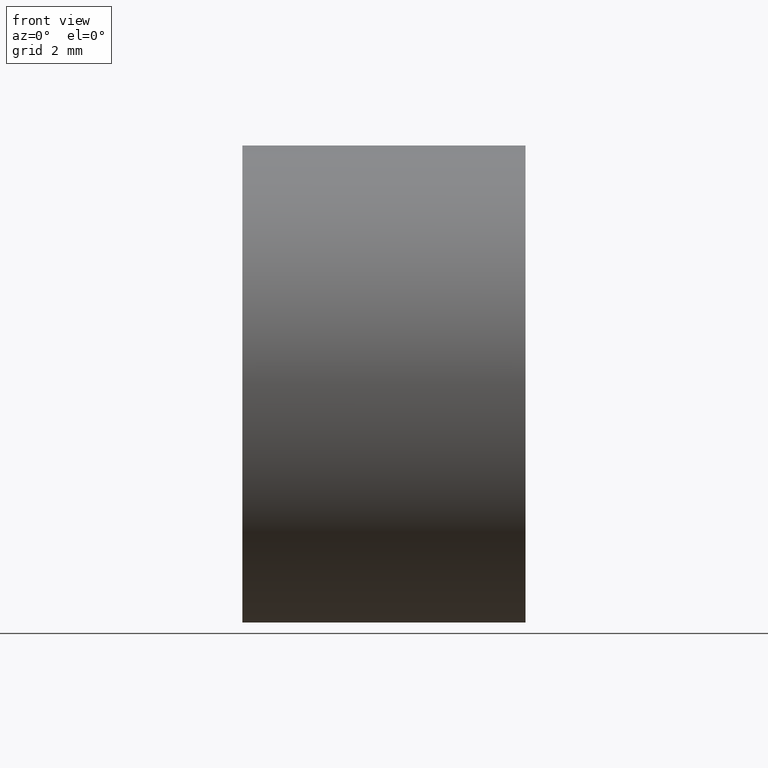
[diagram: clean part render]
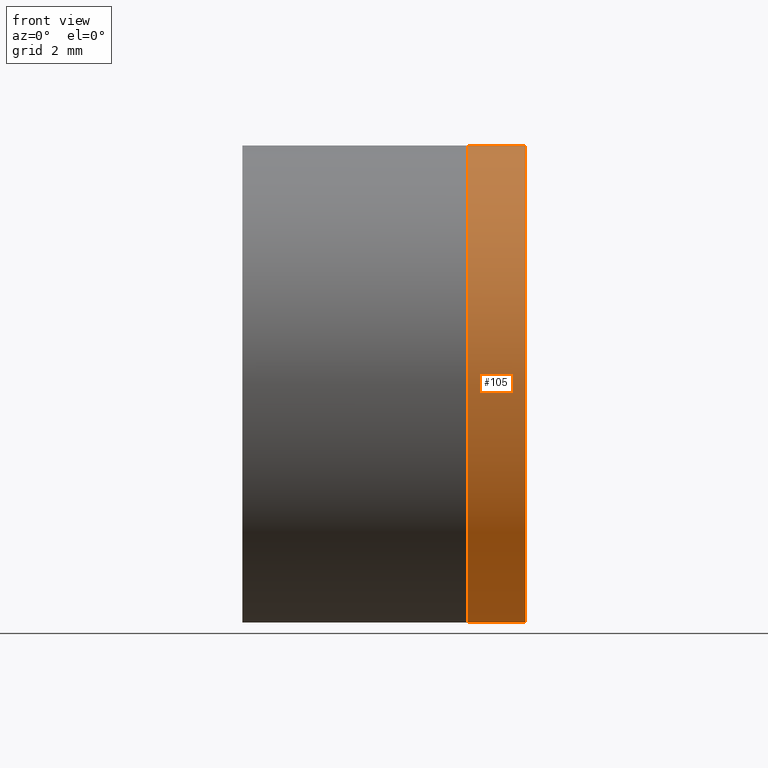
[diagram: same view with one face highlighted and labeled with its STEP entity id]
A machine part, front view. The second image highlights one B-rep face of the part: STEP entity #105.
In plain terms, the highlighted cylindrical surface (partial cylindrical patch) has radius 6.25 mm, axis along (-1, -0, -0).
Its self-contained STEP definition (entity closure, byte-faithful):
#8 = EDGE_CURVE ( 'NONE', #122, #172, #330, .T. ) ;
#16 = DIRECTION ( 'NONE',  ( -4.440892098500621400E-015, 0.0000000000000000000, 1.000000000000000000 ) ) ;
#22 = LINE ( 'NONE', #185, #302 ) ;
#31 = CIRCLE ( 'NONE', #250, 6.250000000000006200 ) ;
#36 = ORIENTED_EDGE ( 'NONE', *, *, #8, .T. ) ;
#45 = CARTESIAN_POINT ( 'NONE',  ( 230.6595650911644100, 7.654042494670974400E-016, -6.250000000000061300 ) ) ;
#51 = CARTESIAN_POINT ( 'NONE',  ( 232.1856338611331400, 0.0000000000000000000, 6.250000000000000000 ) ) ;
#60 = CARTESIAN_POINT ( 'NONE',  ( 232.1856338611331700, 0.0000000000000000000, -1.143077084485743200E-014 ) ) ;
#66 = EDGE_LOOP ( 'NONE', ( #215, #36, #116, #342 ) ) ;
#77 = EDGE_CURVE ( 'NONE', #275, #233, #31, .T. ) ;
#79 = AXIS2_PLACEMENT_3D ( 'NONE', #235, #126, #132 ) ;
#100 = CARTESIAN_POINT ( 'NONE',  ( 230.6595650911643500, 0.0000000000000000000, 6.249999999999996400 ) ) ;
#105 = ADVANCED_FACE ( 'NONE', ( #129 ), #121, .T. ) ;
#116 = ORIENTED_EDGE ( 'NONE', *, *, #175, .T. ) ;
#121 = CYLINDRICAL_SURFACE ( 'NONE', #79, 6.250000000000008900 ) ;
#122 = VERTEX_POINT ( 'NONE', #261 ) ;
#126 = DIRECTION ( 'NONE',  ( -1.000000000000000000, -0.0000000000000000000, -4.069742797125215000E-015 ) ) ;
#129 = FACE_OUTER_BOUND ( 'NONE', #66, .T. ) ;
#132 = DIRECTION ( 'NONE',  ( -4.440892098500619900E-015, 0.0000000000000000000, 1.000000000000000000 ) ) ;
#146 = DIRECTION ( 'NONE',  ( -1.000000000000000000, -0.0000000000000000000, -4.069742797125215000E-015 ) ) ;
#159 = DIRECTION ( 'NONE',  ( -4.440892098500618300E-015, 0.0000000000000000000, 1.000000000000000000 ) ) ;
#170 = DIRECTION ( 'NONE',  ( -1.000000000000000000, -0.0000000000000000000, -4.069742797125215000E-015 ) ) ;
#172 = VERTEX_POINT ( 'NONE', #51 ) ;
#173 = VECTOR ( 'NONE', #262, 1000.000000000000000 ) ;
#175 = EDGE_CURVE ( 'NONE', #172, #233, #22, .T. ) ;
#183 = DIRECTION ( 'NONE',  ( -1.000000000000000000, -0.0000000000000000000, -4.069742797125215000E-015 ) ) ;
#185 = CARTESIAN_POINT ( 'NONE',  ( 224.7643804590949500, 0.0000000000000000000, 6.249999999999967100 ) ) ;
#215 = ORIENTED_EDGE ( 'NONE', *, *, #298, .F. ) ;
#233 = VERTEX_POINT ( 'NONE', #100 ) ;
#235 = CARTESIAN_POINT ( 'NONE',  ( 224.7643804590949800, 0.0000000000000000000, -4.163336342344337000E-014 ) ) ;
#250 = AXIS2_PLACEMENT_3D ( 'NONE', #283, #170, #16 ) ;
#259 = CARTESIAN_POINT ( 'NONE',  ( 224.7643804590950100, 7.654042494670968500E-016, -6.250000000000050600 ) ) ;
#261 = CARTESIAN_POINT ( 'NONE',  ( 232.1856338611332000, 7.654042494670970400E-016, -6.250000000000023100 ) ) ;
#262 = DIRECTION ( 'NONE',  ( -1.000000000000000000, -0.0000000000000000000, -4.069742797125215000E-015 ) ) ;
#275 = VERTEX_POINT ( 'NONE', #45 ) ;
#283 = CARTESIAN_POINT ( 'NONE',  ( 230.6595650911643800, 0.0000000000000000000, -1.764147822935559100E-014 ) ) ;
#298 = EDGE_CURVE ( 'NONE', #122, #275, #321, .T. ) ;
#302 = VECTOR ( 'NONE', #183, 1000.000000000000000 ) ;
#321 = LINE ( 'NONE', #259, #173 ) ;
#330 = CIRCLE ( 'NONE', #335, 6.250000000000011500 ) ;
#335 = AXIS2_PLACEMENT_3D ( 'NONE', #60, #146, #159 ) ;
#342 = ORIENTED_EDGE ( 'NONE', *, *, #77, .F. ) ;